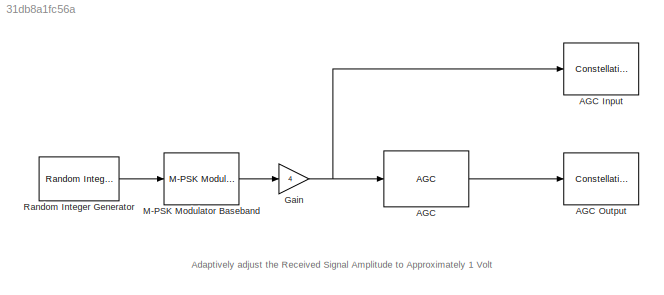
MODEL slx_31db8a1fc56a
KIND model
BLOCK [Reference] AGC  REF=commrfcorlib/AGC
  DetectorMethod = Rectifier
  GainOutputPort = off
  LoopMethod = Linear
  MaximumGain = 30
  Ports = [1, 1]
  SimulateUsing = Code generation
  SourceBlock = commrfcorlib/AGC
  SourceType = AGC
  StepSize = 0.1
  UpdatePeriod = 100
BLOCK [ConstellationDiagram] AGC Input
  Ports = [1]
  Tag = ScatterPlot
BLOCK [ConstellationDiagram] AGC Output
  Ports = [1]
  Tag = ScatterPlot
BLOCK [Gain] Gain
  Gain = 4
  OutDataTypeStr = Inherit: Inherit via internal rule
  ParamDataTypeStr = Inherit: Inherit via internal rule
  SaturateOnIntegerOverflow = off
BLOCK [Reference] M-PSK Modulator Baseband  REF=commdigbbndpm3/M-PSK
Modulator
Baseband
  Enc = Gray
  InType = Integer
  M = 4
  Mapping = [0:7]
  Ph = pi/4
  Ports = [1, 1]
  SourceBlock = commdigbbndpm3/M-PSK\nModulator\nBaseband
  SourceType = M-PSK Modulator Baseband
  outDtype = double
  outFracLen = 15
  outFracLenMode = Best precision
  outUDDataType = sfix(16)
  outWordLen = 16
BLOCK [Reference] Random Integer Generator  REF=commrandsrc2/Random Integer
Generator
  Ports = [0, 1]
  SourceBlock = commrandsrc2/Random Integer\nGenerator
  SourceType = Random Integer Generator
  Ts = 1
  frameBased = on
  mul = 4
  orient = off
  outDataType = double
  sampPerFrame = 1000
  seed = 37
ANNOTATION (root): Adaptively adjust the Received Signal Amplitude to Approximately 1 Volt
LINE AGC:1 -> AGC Output:1
NET Gain:1 -> AGC Input:1, AGC:1
LINE M-PSK Modulator Baseband:1 -> Gain:1
LINE Random Integer Generator:1 -> M-PSK Modulator Baseband:1
note: NET lines group one-source signal fan-out (src -> all destinations, sorted); 1:1 wires keep LINE
